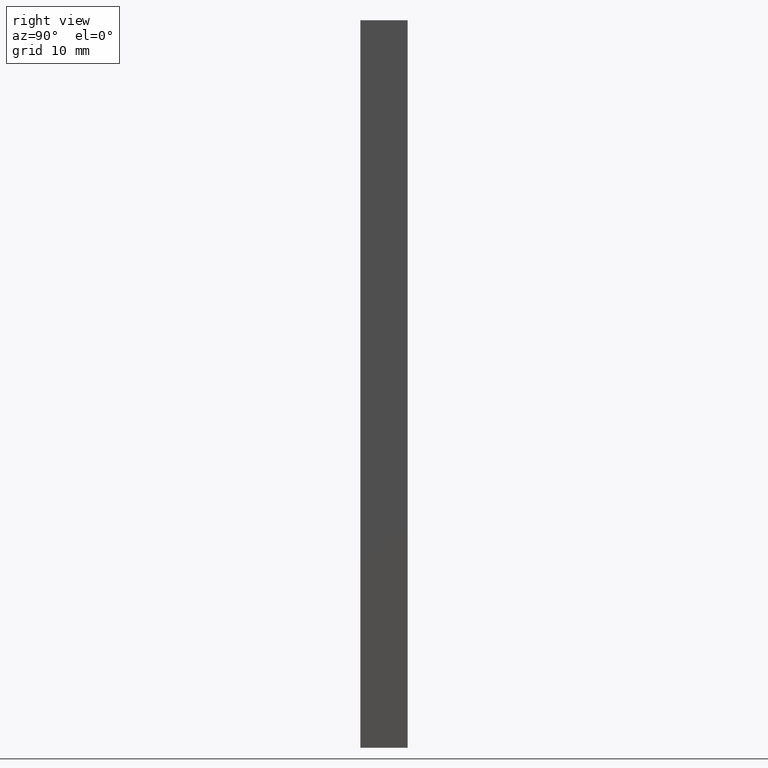
[diagram: clean part render]
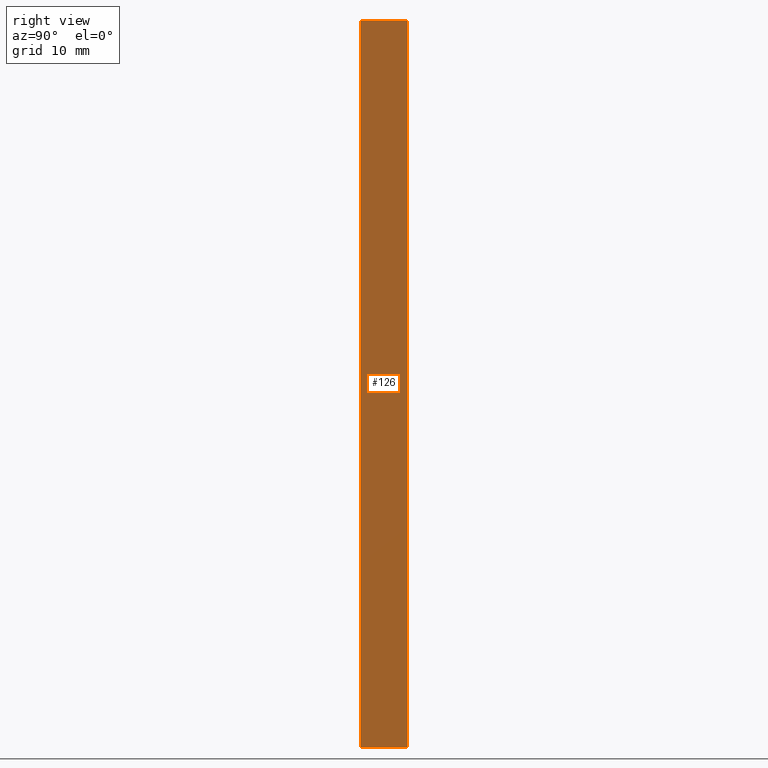
[diagram: same view with one face highlighted and labeled with its STEP entity id]
A machine part, right view. The second image highlights one B-rep face of the part: STEP entity #126.
In plain terms, the highlighted planar face has unit normal (1, 0, 0).
Its self-contained STEP definition (entity closure, byte-faithful):
#20=FACE_OUTER_BOUND('',#27,.T.);
#27=EDGE_LOOP('',(#102,#103,#104,#105));
#30=LINE('',#194,#45);
#41=LINE('',#215,#56);
#42=LINE('',#218,#57);
#43=LINE('',#219,#58);
#45=VECTOR('',#163,10.);
#56=VECTOR('',#180,10.);
#57=VECTOR('',#183,10.);
#58=VECTOR('',#184,10.);
#60=VERTEX_POINT('',#192);
#61=VERTEX_POINT('',#193);
#68=VERTEX_POINT('',#213);
#69=VERTEX_POINT('',#217);
#70=EDGE_CURVE('',#60,#61,#30,.T.);
#81=EDGE_CURVE('',#68,#61,#41,.T.);
#82=EDGE_CURVE('',#68,#69,#42,.T.);
#83=EDGE_CURVE('',#60,#69,#43,.T.);
#102=ORIENTED_EDGE('',*,*,#82,.T.);
#103=ORIENTED_EDGE('',*,*,#83,.F.);
#104=ORIENTED_EDGE('',*,*,#70,.T.);
#105=ORIENTED_EDGE('',*,*,#81,.F.);
#119=PLANE('',#156);
#126=ADVANCED_FACE('',(#20),#119,.T.);
#156=AXIS2_PLACEMENT_3D('',#216,#181,#182);
#163=DIRECTION('',(-3.41607084500048E-16,1.,0.));
#180=DIRECTION('',(0.,0.,-1.));
#181=DIRECTION('center_axis',(1.,3.41607084500048E-16,0.));
#182=DIRECTION('ref_axis',(0.,0.,-1.));
#183=DIRECTION('',(3.41607084500048E-16,-1.,0.));
#184=DIRECTION('',(0.,0.,1.));
#192=CARTESIAN_POINT('',(4.44089209850063E-15,2.22044604925031E-15,-50.));
#193=CARTESIAN_POINT('',(2.22044604925031E-15,6.50000000000001,-50.));
#194=CARTESIAN_POINT('',(2.22044604925031E-15,6.50000000000001,-50.));
#213=CARTESIAN_POINT('',(2.22044604925031E-15,6.50000000000001,50.));
#215=CARTESIAN_POINT('',(2.22044604925031E-15,6.50000000000001,0.));
#216=CARTESIAN_POINT('Origin',(2.22044604925031E-15,6.50000000000001,0.));
#217=CARTESIAN_POINT('',(4.44089209850063E-15,2.22044604925031E-15,50.));
#218=CARTESIAN_POINT('',(2.22044604925031E-15,6.50000000000001,50.));
#219=CARTESIAN_POINT('',(4.44089209850063E-15,2.22044604925031E-15,0.));